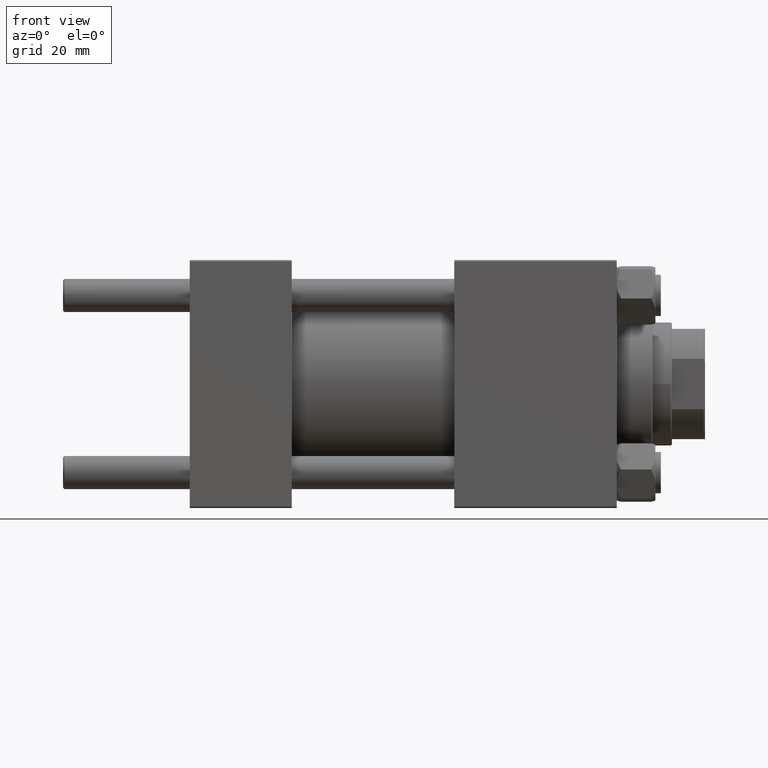
[diagram: clean part render]
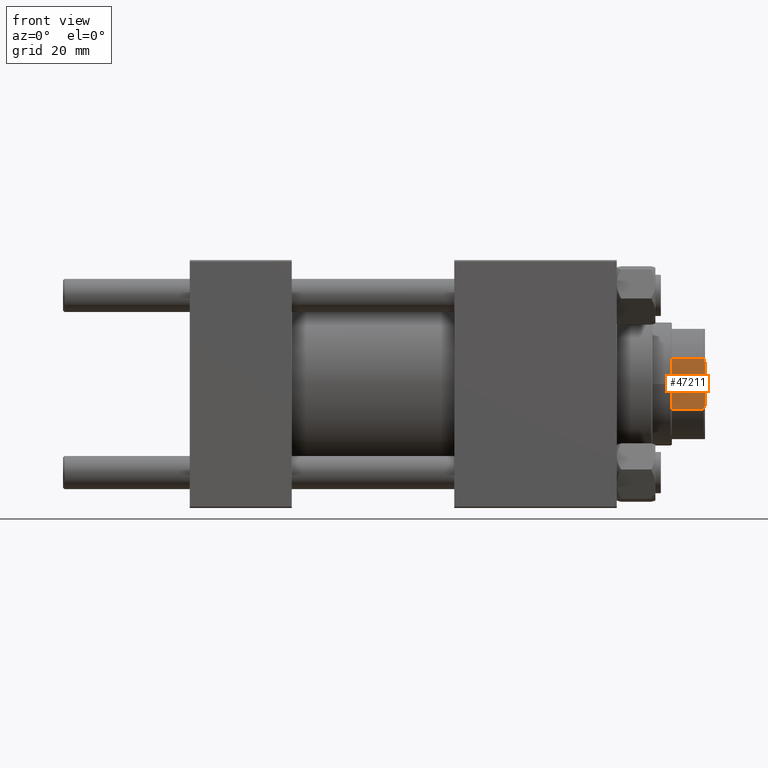
[diagram: same view with one face highlighted and labeled with its STEP entity id]
A machine part, front view. The second image highlights one B-rep face of the part: STEP entity #47211.
In plain terms, the highlighted planar face has unit normal (0, 1, 0).
Its self-contained STEP definition (entity closure, byte-faithful):
#103 = CARTESIAN_POINT ( 'NONE',  ( 19.99999999999999645, 8.743570658524381756, 149.6756296011925258 ) ) ;
#2346 = EDGE_CURVE ( 'NONE', #36633, #24905, #23397, .T. ) ;
#3139 = VECTOR ( 'NONE', #33895, 1000.000000000000000 ) ;
#3222 = CARTESIAN_POINT ( 'NONE',  ( 19.99999999999999645, 20.00000000000000000, 150.0000000000000284 ) ) ;
#3636 = CARTESIAN_POINT ( 'NONE',  ( 19.99999999999999645, 9.165151389911683211, 149.5000000000000568 ) ) ;
#4313 = LINE ( 'NONE', #18254, #25635 ) ;
#4415 = ORIENTED_EDGE ( 'NONE', *, *, #2346, .T. ) ;
#6406 = DIRECTION ( 'NONE',  ( 1.734723475976806848E-16, -1.000000000000000000, 0.000000000000000000 ) ) ;
#7098 = CARTESIAN_POINT ( 'NONE',  ( 20.00000000000000000, -8.743570658524330241, 149.6756296011924974 ) ) ;
#7858 = DIRECTION ( 'NONE',  ( -0.000000000000000000, -0.000000000000000000, 1.000000000000000000 ) ) ;
#10369 = B_SPLINE_CURVE_WITH_KNOTS ( 'NONE', 3,
 ( #3636, #103, #45235, #14488 ),
 .UNSPECIFIED., .F., .F.,
 ( 4, 4 ),
 ( 0.000000000000000000, 0.001369799431184152939 ),
 .UNSPECIFIED. ) ;
#11472 = CARTESIAN_POINT ( 'NONE',  ( 20.00000000000000000, 7.889866919029812742, 150.0000000000000284 ) ) ;
#12075 = VECTOR ( 'NONE', #34990, 1000.000000000000000 ) ;
#13076 = EDGE_CURVE ( 'NONE', #24905, #42668, #4313, .T. ) ;
#14410 = CARTESIAN_POINT ( 'NONE',  ( 20.00000000000000000, -8.318618722654344211, 149.8426607129352419 ) ) ;
#14488 = CARTESIAN_POINT ( 'NONE',  ( 20.00000000000000000, 7.889866919029812742, 150.0000000000000284 ) ) ;
#14900 = EDGE_CURVE ( 'NONE', #36633, #32573, #38689, .T. ) ;
#15700 = ORIENTED_EDGE ( 'NONE', *, *, #13076, .T. ) ;
#15760 = CARTESIAN_POINT ( 'NONE',  ( 19.99999999999999289, -9.165151389911693869, 138.0000000000000568 ) ) ;
#18254 = CARTESIAN_POINT ( 'NONE',  ( 19.99999999999999645, 9.165151389911683211, -0.001000000000001000089 ) ) ;
#19895 = AXIS2_PLACEMENT_3D ( 'NONE', #41703, #41451, #6406 ) ;
#20644 = VERTEX_POINT ( 'NONE', #31554 ) ;
#20938 = EDGE_LOOP ( 'NONE', ( #15700, #37631, #34081, #43737, #20981, #4415 ) ) ;
#20981 = ORIENTED_EDGE ( 'NONE', *, *, #14900, .F. ) ;
#23132 = LINE ( 'NONE', #3222, #32482 ) ;
#23397 = LINE ( 'NONE', #31206, #12075 ) ;
#24522 = CARTESIAN_POINT ( 'NONE',  ( 19.99999999999999289, -9.165151389911693869, 149.5000000000000000 ) ) ;
#24905 = VERTEX_POINT ( 'NONE', #34509 ) ;
#25635 = VECTOR ( 'NONE', #7858, 1000.000000000000000 ) ;
#30115 = CARTESIAN_POINT ( 'NONE',  ( 19.99999999999999289, -9.165151389911693869, -0.001000000000001000089 ) ) ;
#30139 = CARTESIAN_POINT ( 'NONE',  ( 19.99999999999999645, 9.165151389911683211, 149.5000000000000568 ) ) ;
#31049 = EDGE_CURVE ( 'NONE', #20644, #32480, #23132, .T. ) ;
#31206 = CARTESIAN_POINT ( 'NONE',  ( 19.99999999999999645, 20.00000000000000000, 138.0000000000000000 ) ) ;
#31554 = CARTESIAN_POINT ( 'NONE',  ( 20.00000000000000000, -7.889866919029643100, 150.0000000000000284 ) ) ;
#32459 = EDGE_CURVE ( 'NONE', #42668, #32480, #10369, .T. ) ;
#32480 = VERTEX_POINT ( 'NONE', #11472 ) ;
#32482 = VECTOR ( 'NONE', #45570, 1000.000000000000000 ) ;
#32571 = B_SPLINE_CURVE_WITH_KNOTS ( 'NONE', 3,
 ( #44654, #14410, #7098, #37854 ),
 .UNSPECIFIED., .F., .F.,
 ( 4, 4 ),
 ( 1.734723475976807094E-18, 0.001369799431184337470 ),
 .UNSPECIFIED. ) ;
#32573 = VERTEX_POINT ( 'NONE', #24522 ) ;
#33895 = DIRECTION ( 'NONE',  ( -0.000000000000000000, -0.000000000000000000, 1.000000000000000000 ) ) ;
#34081 = ORIENTED_EDGE ( 'NONE', *, *, #31049, .F. ) ;
#34509 = CARTESIAN_POINT ( 'NONE',  ( 19.99999999999999645, 9.165151389911683211, 138.0000000000000568 ) ) ;
#34990 = DIRECTION ( 'NONE',  ( -1.734723475976807094E-16, 1.000000000000000000, -0.000000000000000000 ) ) ;
#36633 = VERTEX_POINT ( 'NONE', #15760 ) ;
#37157 = PLANE ( 'NONE',  #19895 ) ;
#37631 = ORIENTED_EDGE ( 'NONE', *, *, #32459, .T. ) ;
#37854 = CARTESIAN_POINT ( 'NONE',  ( 19.99999999999999289, -9.165151389911693869, 149.5000000000000000 ) ) ;
#38689 = LINE ( 'NONE', #30115, #3139 ) ;
#41451 = DIRECTION ( 'NONE',  ( -1.000000000000000000, -1.734723475976806848E-16, 0.000000000000000000 ) ) ;
#41703 = CARTESIAN_POINT ( 'NONE',  ( 19.99999999999999645, 20.00000000000000000, 150.0000000000000284 ) ) ;
#42668 = VERTEX_POINT ( 'NONE', #30139 ) ;
#43737 = ORIENTED_EDGE ( 'NONE', *, *, #44108, .T. ) ;
#44108 = EDGE_CURVE ( 'NONE', #20644, #32573, #32571, .T. ) ;
#44654 = CARTESIAN_POINT ( 'NONE',  ( 20.00000000000000000, -7.889866919029643100, 150.0000000000000284 ) ) ;
#44716 = FACE_OUTER_BOUND ( 'NONE', #20938, .T. ) ;
#45235 = CARTESIAN_POINT ( 'NONE',  ( 20.00000000000000000, 8.318618722654454345, 149.8426607129352703 ) ) ;
#45570 = DIRECTION ( 'NONE',  ( -1.734723475976807094E-16, 1.000000000000000000, -0.000000000000000000 ) ) ;
#47211 = ADVANCED_FACE ( 'NONE', ( #44716 ), #37157, .F. ) ;